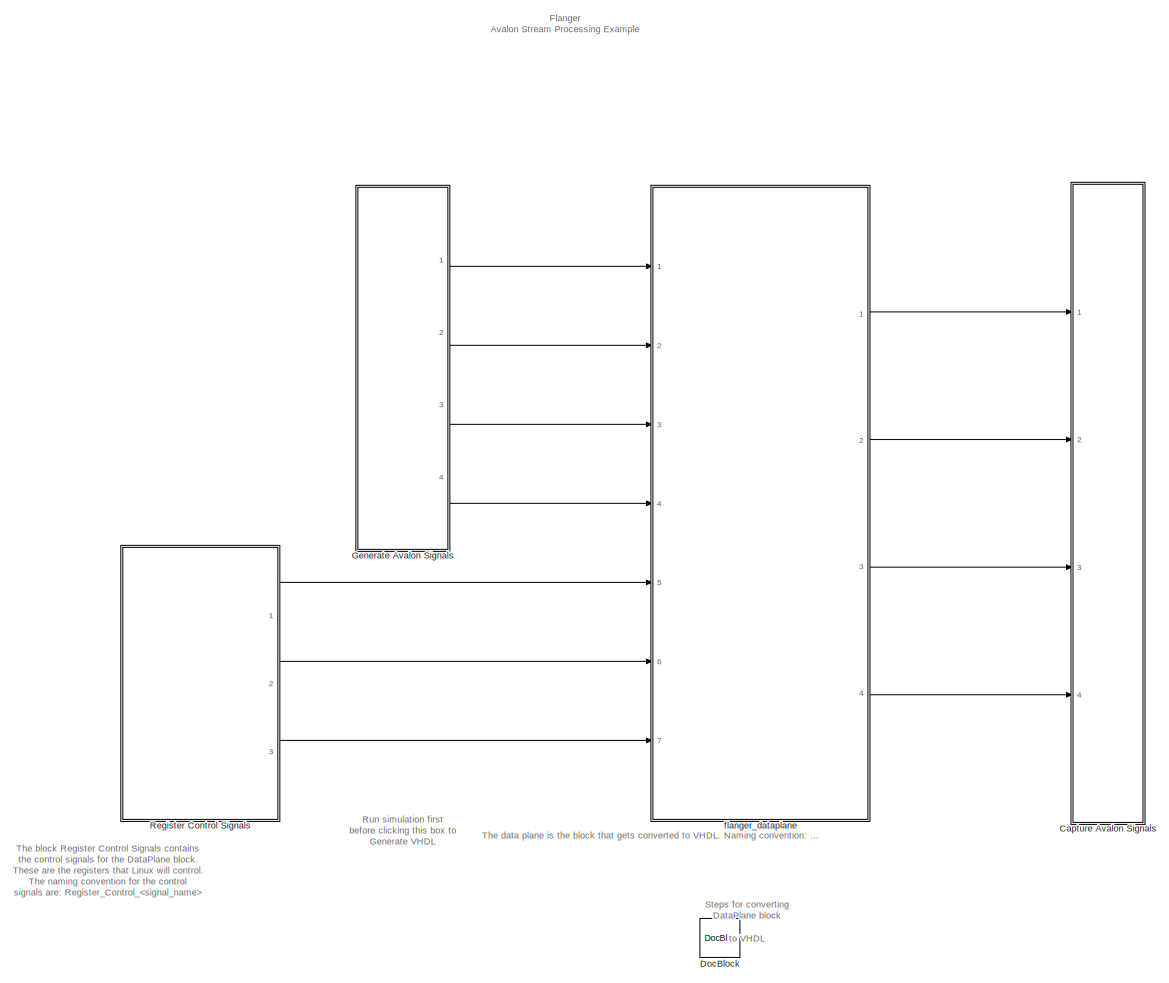
[diagram: root canvas - part 1/1, most of the canvas]
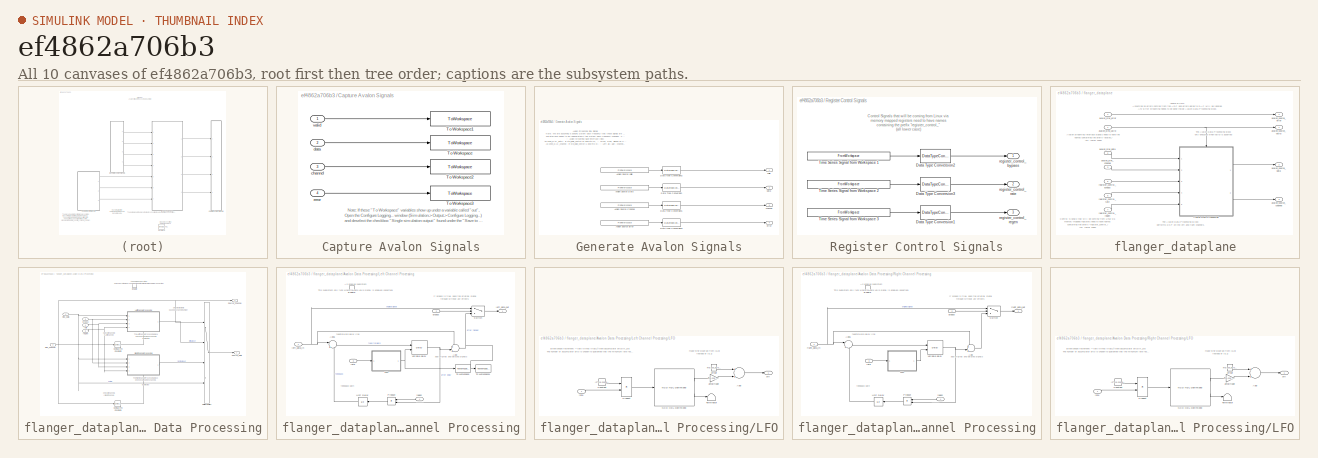
[diagram: thumbnail index - all 10 canvases of the model, root first then tree order]
MODEL slx_ef4862a706b3
KIND model
CONFIG AbsTol = auto
CONFIG EnableMultiTasking = off
CONFIG FixedStep = auto
CONFIG InitFcn = sm_callback_init
CONFIG MaxStep = auto
CONFIG MinStep = auto
CONFIG RelTol = 1e-3
CONFIG SampleTimeConstraint = Unconstrained
CONFIG Solver = FixedStepDiscrete
CONFIG SolverName = FixedStepDiscrete
CONFIG StartTime = 0.0
CONFIG StopFcn = sm_callback_stop
CONFIG StopTime = stop_time
BLOCK [SubSystem] Capture Avalon Signals
  Ports = [4]
  RequestExecContextInheritance = off
BLOCK [ToWorkspace] Capture Avalon Signals/To Workspace
  FixptAsFi = on
  MaxDataPoints = inf
  Ports = [1]
  SampleTime = -1
  SaveFormat = Timeseries
  VariableName = Avalon_Sink_Data
BLOCK [ToWorkspace] Capture Avalon Signals/To Workspace1
  FixptAsFi = on
  MaxDataPoints = inf
  Ports = [1]
  SampleTime = -1
  SaveFormat = Timeseries
  VariableName = Avalon_Sink_Valid
BLOCK [ToWorkspace] Capture Avalon Signals/To Workspace2
  FixptAsFi = on
  MaxDataPoints = inf
  Ports = [1]
  SampleTime = -1
  SaveFormat = Timeseries
  VariableName = Avalon_Sink_Channel
BLOCK [ToWorkspace] Capture Avalon Signals/To Workspace3
  FixptAsFi = on
  MaxDataPoints = inf
  Ports = [1]
  SampleTime = -1
  SaveFormat = Timeseries
  VariableName = Avalon_Sink_Error
BLOCK [Inport] Capture Avalon Signals/channel
  IconDisplay = Port number
  Port = 3
BLOCK [Inport] Capture Avalon Signals/data
  IconDisplay = Port number
  Port = 2
BLOCK [Inport] Capture Avalon Signals/error
  IconDisplay = Port number
  Port = 4
BLOCK [Inport] Capture Avalon Signals/valid
  IconDisplay = Port number
BLOCK [Reference] DocBlock  REF=simulink/Model-Wide
Utilities/DocBlock
  Ports = []
  SourceBlock = simulink/Model-Wide\nUtilities/DocBlock
  SourceProductBaseCode = SL
  SourceProductName = Simulink
  SourceType = DocBlock
  UserDataPersistent = on
BLOCK [SubSystem] Generate Avalon Signals
  Ports = [0, 4]
  RequestExecContextInheritance = off
BLOCK [FromWorkspace] Generate Avalon Signals/Avalon Source Channel
  OutDataTypeStr = double
  SampleTime = mp.Ts_system
  VariableName = mp.Avalon_Source_Channel
  ZeroCross = on
BLOCK [FromWorkspace] Generate Avalon Signals/Avalon Source Data 
  OutDataTypeStr = double
  SampleTime = mp.Ts_system
  VariableName = mp.Avalon_Source_Data
  ZeroCross = on
BLOCK [FromWorkspace] Generate Avalon Signals/Avalon Source Error
  OutDataTypeStr = double
  SampleTime = mp.Ts_system
  VariableName = mp.Avalon_Source_Error
  ZeroCross = on
BLOCK [FromWorkspace] Generate Avalon Signals/Avalon Source Valid
  OutDataTypeStr = double
  SampleTime = mp.Ts_system
  VariableName = mp.Avalon_Source_Valid
  ZeroCross = on
BLOCK [DataTypeConversion] Generate Avalon Signals/Data Type Conversion
  OutDataTypeStr = fixdt(1,mp.W_bits,mp.F_bits)
  RndMeth = Floor
  SaturateOnIntegerOverflow = off
BLOCK [DataTypeConversion] Generate Avalon Signals/Data Type Conversion1
  OutDataTypeStr = fixdt(0,2,0)
  RndMeth = Floor
  SaturateOnIntegerOverflow = off
BLOCK [DataTypeConversion] Generate Avalon Signals/Data Type Conversion2
  OutDataTypeStr = boolean
  RndMeth = Floor
  SaturateOnIntegerOverflow = off
BLOCK [DataTypeConversion] Generate Avalon Signals/Data Type Conversion3
  OutDataTypeStr = fixdt(0,2,0)
  RndMeth = Floor
  SaturateOnIntegerOverflow = off
BLOCK [Outport] Generate Avalon Signals/channel
  IconDisplay = Port number
  Port = 3
BLOCK [Outport] Generate Avalon Signals/data
  IconDisplay = Port number
  Port = 2
BLOCK [Outport] Generate Avalon Signals/error
  IconDisplay = Port number
  Port = 4
BLOCK [Outport] Generate Avalon Signals/valid
  IconDisplay = Port number
BLOCK [SubSystem] Register Control Signals
  Ports = [0, 3]
  RequestExecContextInheritance = off
BLOCK [DataTypeConversion] Register Control Signals/Data Type Conversion1
  OutDataTypeStr = fixdt(0,8,7)
  RndMeth = Floor
  SaturateOnIntegerOverflow = off
BLOCK [DataTypeConversion] Register Control Signals/Data Type Conversion2
  OutDataTypeStr = boolean
  RndMeth = Floor
  SaturateOnIntegerOverflow = off
BLOCK [DataTypeConversion] Register Control Signals/Data Type Conversion3
  OutDataTypeStr = fixdt(0,8,5)
  RndMeth = Floor
  SaturateOnIntegerOverflow = off
BLOCK [FromWorkspace] Register Control Signals/Time Series Signal from Workspace 1
  OutDataTypeStr = double
  SampleTime = mp.Ts_system
  VariableName = mp.register(1).timeseries
  ZeroCross = on
BLOCK [FromWorkspace] Register Control Signals/Time Series Signal from Workspace 2
  OutDataTypeStr = double
  SampleTime = mp.Ts_system
  VariableName = mp.register(2).timeseries
  ZeroCross = on
BLOCK [FromWorkspace] Register Control Signals/Time Series Signal from Workspace 3
  OutDataTypeStr = double
  SampleTime = mp.Ts_system
  VariableName = mp.register(3).timeseries
  ZeroCross = on
BLOCK [Outport] Register Control Signals/register_control_bypass
  IconDisplay = Port number
BLOCK [Outport] Register Control Signals/register_control_rate
  IconDisplay = Port number
  Port = 2
BLOCK [Outport] Register Control Signals/register_control_regen
  IconDisplay = Port number
  Port = 3
BLOCK [SubSystem] flanger_dataplane
  Ports = [7, 4]
  RequestExecContextInheritance = off
  TreatAsAtomicUnit = on
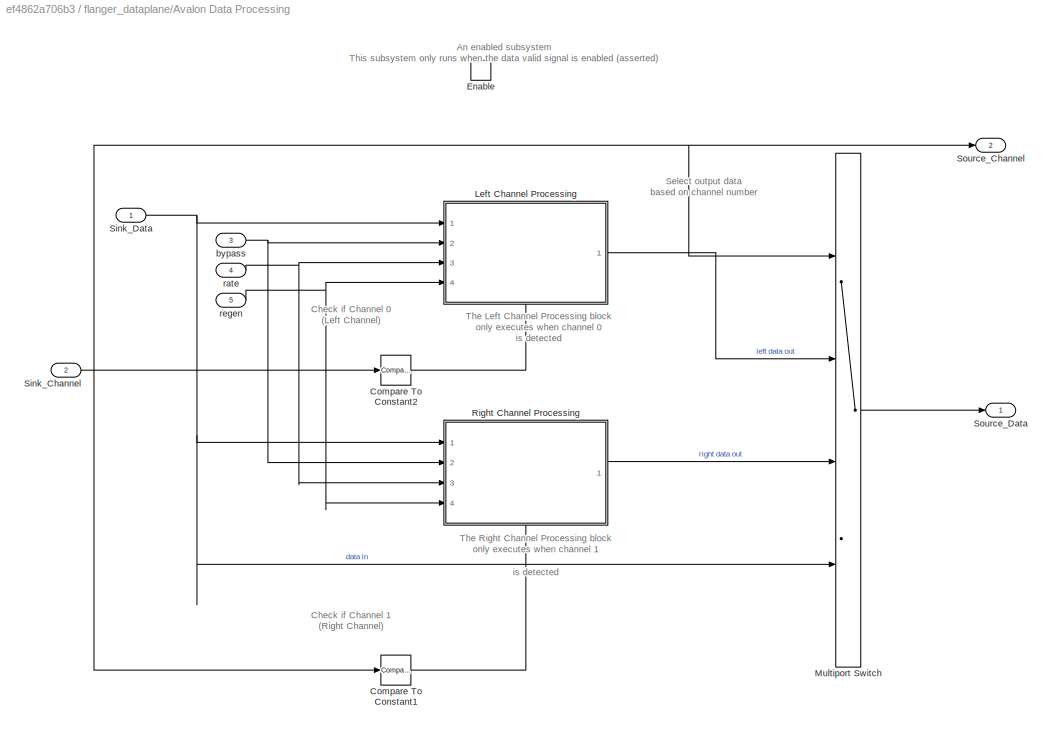
BLOCK [SubSystem] flanger_dataplane/Avalon Data Processing
  Ports = [5, 2, 1]
  RequestExecContextInheritance = off
  TreatAsAtomicUnit = on
BLOCK [Reference] flanger_dataplane/Avalon Data Processing/Compare To Constant1  REF=simulink/Logic and Bit
Operations/Compare
To Constant
  Ports = [1, 1]
  SourceBlock = simulink/Logic and Bit\nOperations/Compare\nTo Constant
  SourceProductBaseCode = SL
  SourceProductName = Simulink
  SourceType = Compare To Constant
BLOCK [Reference] flanger_dataplane/Avalon Data Processing/Compare To Constant2  REF=simulink/Logic and Bit
Operations/Compare
To Constant
  Ports = [1, 1]
  SourceBlock = simulink/Logic and Bit\nOperations/Compare\nTo Constant
  SourceProductBaseCode = SL
  SourceProductName = Simulink
  SourceType = Compare To Constant
BLOCK [EnablePort] flanger_dataplane/Avalon Data Processing/Enable
  Ports = []
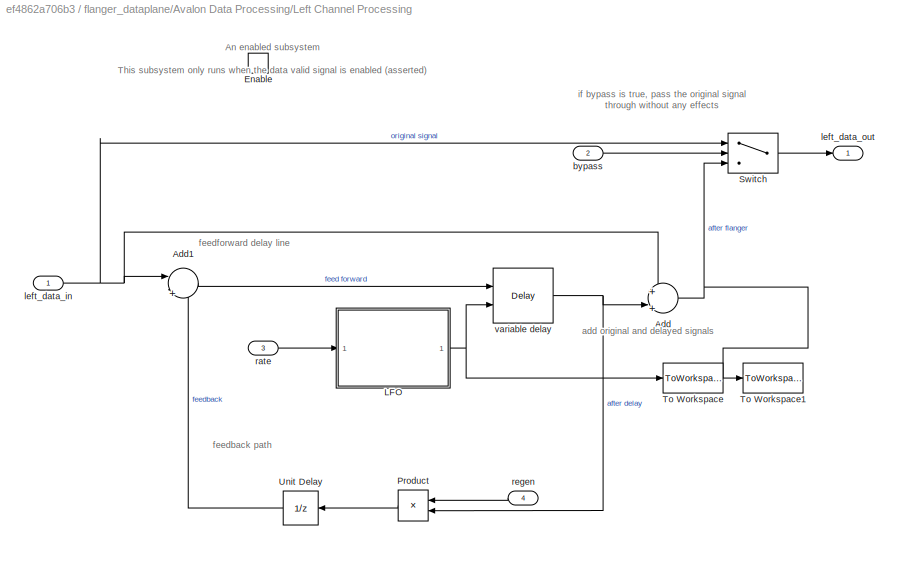
BLOCK [SubSystem] flanger_dataplane/Avalon Data Processing/Left Channel Processing
  Ports = [4, 1, 1]
  RequestExecContextInheritance = off
  TreatAsAtomicUnit = on
BLOCK [Sum] flanger_dataplane/Avalon Data Processing/Left Channel Processing/Add
  IconShape = round
  InputSameDT = off
  Inputs = +|+||
  OutDataTypeStr = fixdt(mp.signed, mp.W_bits, mp.F_bits)
  Ports = [2, 1]
  SaturateOnIntegerOverflow = off
BLOCK [Sum] flanger_dataplane/Avalon Data Processing/Left Channel Processing/Add1
  IconShape = round
  InputSameDT = off
  Inputs = ||+|+
  OutDataTypeStr = fixdt(1, 40, 32)
  Ports = [2, 1]
  SaturateOnIntegerOverflow = off
BLOCK [EnablePort] flanger_dataplane/Avalon Data Processing/Left Channel Processing/Enable
  Ports = []
BLOCK [SubSystem] flanger_dataplane/Avalon Data Processing/Left Channel Processing/LFO
  Ports = [1, 1]
  RequestExecContextInheritance = off
BLOCK [Sum] flanger_dataplane/Avalon Data Processing/Left Channel Processing/LFO/Add
  InputSameDT = off
  OutDataTypeStr = Inherit: Inherit via internal rule
  Ports = [2, 1]
  SaturateOnIntegerOverflow = off
BLOCK [Constant] flanger_dataplane/Avalon Data Processing/Left Channel Processing/LFO/Constant
  OutDataTypeStr = fixdt(0,16,12)
  SampleTime = -1
  Value = (2^mp.nco_accumulator_bits)/mp.Fs
BLOCK [Reference] flanger_dataplane/Avalon Data Processing/Left Channel Processing/LFO/NCO HDL Optimized  REF=dspsigops/NCO
HDL Optimized
  Ports = [1, 2]
  SourceBlock = dspsigops/NCO\nHDL Optimized
  SourceProductBaseCode = DS
  SourceProductName = DSP System Toolbox
  SourceType = NCO HDL Optimized
BLOCK [Product] flanger_dataplane/Avalon Data Processing/Left Channel Processing/LFO/Product
  InputSameDT = off
  OutDataTypeStr = Inherit: Inherit via internal rule
  Ports = [2, 1]
  RndMeth = Floor
  SaturateOnIntegerOverflow = off
BLOCK [Terminator] flanger_dataplane/Avalon Data Processing/Left Channel Processing/LFO/Terminator
BLOCK [Gain] flanger_dataplane/Avalon Data Processing/Left Channel Processing/LFO/amplitude
  Gain = mp.nco_amplitude
  OutDataTypeStr = int16
  ParamDataTypeStr = Inherit: Inherit via internal rule
  SaturateOnIntegerOverflow = off
BLOCK [Constant] flanger_dataplane/Avalon Data Processing/Left Channel Processing/LFO/offset
  OutDataTypeStr = uint16
  SampleTime = -1
  Value = mp.nco_offset
BLOCK [Inport] flanger_dataplane/Avalon Data Processing/Left Channel Processing/LFO/rate
  IconDisplay = Port number
BLOCK [Outport] flanger_dataplane/Avalon Data Processing/Left Channel Processing/LFO/sin
  IconDisplay = Port number
BLOCK [Product] flanger_dataplane/Avalon Data Processing/Left Channel Processing/Product
  InputSameDT = off
  OutDataTypeStr = Inherit: Inherit via back propagation
  Ports = [2, 1]
  RndMeth = Floor
  SaturateOnIntegerOverflow = off
BLOCK [Switch] flanger_dataplane/Avalon Data Processing/Left Channel Processing/Switch
  Criteria = u2 ~= 0
  InputSameDT = off
  SaturateOnIntegerOverflow = off
BLOCK [ToWorkspace] flanger_dataplane/Avalon Data Processing/Left Channel Processing/To Workspace
  FixptAsFi = on
  MaxDataPoints = inf
  Ports = [1]
  SampleTime = -1
  Save2DSignal = 2-D array (concatenate along first dimension)
  VariableName = lfo_old
BLOCK [ToWorkspace] flanger_dataplane/Avalon Data Processing/Left Channel Processing/To Workspace1
  FixptAsFi = on
  MaxDataPoints = inf
  Ports = [1]
  SampleTime = -1
  Save2DSignal = 2-D array (concatenate along first dimension)
  VariableName = out_old
BLOCK [UnitDelay] flanger_dataplane/Avalon Data Processing/Left Channel Processing/Unit Delay
  HasFrameUpgradeWarning = on
  SampleTime = -1
BLOCK [Inport] flanger_dataplane/Avalon Data Processing/Left Channel Processing/bypass
  IconDisplay = Port number
  Port = 2
BLOCK [Inport] flanger_dataplane/Avalon Data Processing/Left Channel Processing/left_data_in
  IconDisplay = Port number
BLOCK [Outport] flanger_dataplane/Avalon Data Processing/Left Channel Processing/left_data_out
  IconDisplay = Port number
  InitialOutput = 0
BLOCK [Inport] flanger_dataplane/Avalon Data Processing/Left Channel Processing/rate
  IconDisplay = Port number
  Port = 3
BLOCK [Inport] flanger_dataplane/Avalon Data Processing/Left Channel Processing/regen
  IconDisplay = Port number
  Port = 4
BLOCK [Delay] flanger_dataplane/Avalon Data Processing/Left Channel Processing/variable delay
  DelayLength = 1
  DelayLengthSource = Input port
  DelayLengthUpperLimit = mp.delay_max
  DiagnosticForDelayLength = Error
  InitialCondition = 0
  InputPortMap = u0,p1
  Ports = [2, 1]
  UseCircularBuffer = on
BLOCK [MultiPortSwitch] flanger_dataplane/Avalon Data Processing/Multiport Switch
  DataPortOrder = Zero-based contiguous
  InputSameDT = off
  Ports = [4, 1]
  SaturateOnIntegerOverflow = off
  zeroidx = on
BLOCK [SubSystem] flanger_dataplane/Avalon Data Processing/Right Channel Processing
  Ports = [4, 1, 1]
  RequestExecContextInheritance = off
  TreatAsAtomicUnit = on
BLOCK [Sum] flanger_dataplane/Avalon Data Processing/Right Channel Processing/Add
  IconShape = round
  InputSameDT = off
  Inputs = +|+||
  OutDataTypeStr = fixdt(mp.signed, mp.W_bits, mp.F_bits)
  Ports = [2, 1]
  SaturateOnIntegerOverflow = off
BLOCK [Sum] flanger_dataplane/Avalon Data Processing/Right Channel Processing/Add1
  IconShape = round
  InputSameDT = off
  Inputs = ||+|+
  OutDataTypeStr = fixdt(1, 40, 32)
  Ports = [2, 1]
  SaturateOnIntegerOverflow = off
BLOCK [EnablePort] flanger_dataplane/Avalon Data Processing/Right Channel Processing/Enable
  Ports = []
BLOCK [SubSystem] flanger_dataplane/Avalon Data Processing/Right Channel Processing/LFO
  Ports = [1, 1]
  RequestExecContextInheritance = off
BLOCK [Sum] flanger_dataplane/Avalon Data Processing/Right Channel Processing/LFO/Add
  InputSameDT = off
  OutDataTypeStr = Inherit: Inherit via internal rule
  Ports = [2, 1]
  SaturateOnIntegerOverflow = off
BLOCK [Constant] flanger_dataplane/Avalon Data Processing/Right Channel Processing/LFO/Constant
  OutDataTypeStr = fixdt(0,16,12)
  SampleTime = -1
  Value = (2^mp.nco_accumulator_bits)/mp.Fs
BLOCK [Reference] flanger_dataplane/Avalon Data Processing/Right Channel Processing/LFO/NCO HDL Optimized  REF=dspsigops/NCO
HDL Optimized
  Ports = [1, 2]
  SourceBlock = dspsigops/NCO\nHDL Optimized
  SourceProductBaseCode = DS
  SourceProductName = DSP System Toolbox
  SourceType = NCO HDL Optimized
BLOCK [Product] flanger_dataplane/Avalon Data Processing/Right Channel Processing/LFO/Product
  InputSameDT = off
  OutDataTypeStr = Inherit: Inherit via internal rule
  Ports = [2, 1]
  RndMeth = Floor
  SaturateOnIntegerOverflow = off
BLOCK [Terminator] flanger_dataplane/Avalon Data Processing/Right Channel Processing/LFO/Terminator
BLOCK [Gain] flanger_dataplane/Avalon Data Processing/Right Channel Processing/LFO/amplitude
  Gain = mp.nco_amplitude
  OutDataTypeStr = int16
  ParamDataTypeStr = Inherit: Inherit via internal rule
  SaturateOnIntegerOverflow = off
BLOCK [Constant] flanger_dataplane/Avalon Data Processing/Right Channel Processing/LFO/offset
  OutDataTypeStr = uint16
  SampleTime = -1
  Value = mp.nco_offset
BLOCK [Inport] flanger_dataplane/Avalon Data Processing/Right Channel Processing/LFO/rate
  IconDisplay = Port number
BLOCK [Outport] flanger_dataplane/Avalon Data Processing/Right Channel Processing/LFO/sin
  IconDisplay = Port number
BLOCK [Product] flanger_dataplane/Avalon Data Processing/Right Channel Processing/Product
  InputSameDT = off
  OutDataTypeStr = Inherit: Inherit via back propagation
  Ports = [2, 1]
  RndMeth = Floor
  SaturateOnIntegerOverflow = off
BLOCK [Switch] flanger_dataplane/Avalon Data Processing/Right Channel Processing/Switch
  Criteria = u2 ~= 0
  InputSameDT = off
  SaturateOnIntegerOverflow = off
BLOCK [UnitDelay] flanger_dataplane/Avalon Data Processing/Right Channel Processing/Unit Delay
  HasFrameUpgradeWarning = on
  SampleTime = -1
BLOCK [Inport] flanger_dataplane/Avalon Data Processing/Right Channel Processing/bypass
  IconDisplay = Port number
  Port = 2
BLOCK [Inport] flanger_dataplane/Avalon Data Processing/Right Channel Processing/rate
  IconDisplay = Port number
  Port = 3
BLOCK [Inport] flanger_dataplane/Avalon Data Processing/Right Channel Processing/regen
  IconDisplay = Port number
  Port = 4
BLOCK [Inport] flanger_dataplane/Avalon Data Processing/Right Channel Processing/right_data_in
  IconDisplay = Port number
BLOCK [Outport] flanger_dataplane/Avalon Data Processing/Right Channel Processing/right_data_out
  IconDisplay = Port number
  InitialOutput = 0
BLOCK [Delay] flanger_dataplane/Avalon Data Processing/Right Channel Processing/variable delay
  DelayLength = 1
  DelayLengthSource = Input port
  DelayLengthUpperLimit = mp.delay_max
  DiagnosticForDelayLength = Error
  InitialCondition = 0
  InputPortMap = u0,p1
  Ports = [2, 1]
  UseCircularBuffer = on
BLOCK [Inport] flanger_dataplane/Avalon Data Processing/Sink_Channel
  IconDisplay = Port number
  Port = 2
BLOCK [Inport] flanger_dataplane/Avalon Data Processing/Sink_Data
  IconDisplay = Port number
BLOCK [Outport] flanger_dataplane/Avalon Data Processing/Source_Channel
  IconDisplay = Port number
  InitialOutput = 0
  Port = 2
BLOCK [Outport] flanger_dataplane/Avalon Data Processing/Source_Data
  IconDisplay = Port number
  InitialOutput = 0
BLOCK [Inport] flanger_dataplane/Avalon Data Processing/bypass
  IconDisplay = Port number
  Port = 3
BLOCK [Inport] flanger_dataplane/Avalon Data Processing/rate
  IconDisplay = Port number
  Port = 4
BLOCK [Inport] flanger_dataplane/Avalon Data Processing/regen
  IconDisplay = Port number
  Port = 5
BLOCK [Inport] flanger_dataplane/avalon_sink_channel
  IconDisplay = Port number
  Port = 3
BLOCK [Inport] flanger_dataplane/avalon_sink_data
  IconDisplay = Port number
  Port = 2
BLOCK [Inport] flanger_dataplane/avalon_sink_error
  IconDisplay = Port number
  Port = 4
BLOCK [Inport] flanger_dataplane/avalon_sink_valid
  IconDisplay = Port number
BLOCK [Outport] flanger_dataplane/avalon_source_channel
  IconDisplay = Port number
  Port = 3
BLOCK [Outport] flanger_dataplane/avalon_source_data
  IconDisplay = Port number
  Port = 2
BLOCK [Outport] flanger_dataplane/avalon_source_error
  IconDisplay = Port number
  Port = 4
BLOCK [Outport] flanger_dataplane/avalon_source_valid
  IconDisplay = Port number
BLOCK [Inport] flanger_dataplane/register_control_bypass
  IconDisplay = Port number
  Port = 5
BLOCK [Inport] flanger_dataplane/register_control_rate
  IconDisplay = Port number
  Port = 6
BLOCK [Inport] flanger_dataplane/register_control_regen
  IconDisplay = Port number
  Port = 7
ANNOTATION (root): Steps for converting DataPlane block to VHDL
ANNOTATION (root): Run simulation first before clicking this box to Generate VHDL
ANNOTATION (root): Flanger Avalon Stream Processing Example
ANNOTATION (root): The block Register Control Signals contains the control signals for the DataPlane block. These are the registers that Linux will control. The naming convention for the control signals are: Register_Control_
ANNOTATION (root): The data plane is the block that gets converted to VHDL. Naming convention: _dataplane
ANNOTATION Capture Avalon Signals: Note: If these "To Workspace" variables show up under a variable called "out", Open the Configure Logging... window (Simulation->Output->Configure Logging...) and deselect the checkbox "Single simulation output:" found under the "Save to workspace or file" section.
ANNOTATION Generate Avalon Signals: Avalon Streaming Sink Signals Note: We are assuming a specific system clock frequency that these signals are being clock in at. The interface needs to be regenerated if this system clock frequency changes. Change system clock frequency in InitFcn callback in Model Explorer. -- Avalon streaming slave interface (sink) AD1939_DAC_data : in std_logic_vector(31 downto 0); -- W=32; F=28; Signed 2's Comp...<+545ch>
ANNOTATION Register Control Signals: Control Signals that will be coming from Linux via memory mapped registers need to have names containing the prefix "register_control_" (all lower case)
ANNOTATION flanger_dataplane: Avalon streaming interface signals need to have the names containing the prefix "avalon_" (all lower case)
ANNOTATION flanger_dataplane: Control Signals that will be coming from Linux via memory mapped registers need to have names containing the prefix "register_control_" (all lower case)
ANNOTATION flanger_dataplane: Ignore Errors. Assuming no errors coming from the ADC and errors going to DAC will be ignored. Any Error streaming needs to be done inside Avalon Data Processing block.
ANNOTATION flanger_dataplane: The Avalon Data Processing Block performs DSP on the left and right channels.
ANNOTATION flanger_dataplane: The Avalon Data Processing block only executes when valid is asserted
ANNOTATION flanger_dataplane/Avalon Data Processing: Check if Channel 0 (Left Channel)
ANNOTATION flanger_dataplane/Avalon Data Processing: Check if Channel 1 (Right Channel)
ANNOTATION flanger_dataplane/Avalon Data Processing: An enabled subsystem This subsystem only runs when the data valid signal is enabled (asserted)
ANNOTATION flanger_dataplane/Avalon Data Processing: Select output data based on channel number
ANNOTATION flanger_dataplane/Avalon Data Processing: The Left Channel Processing block only executes when channel 0 is detected
ANNOTATION flanger_dataplane/Avalon Data Processing: The Right Channel Processing block only executes when channel 1 is detected
ANNOTATION flanger_dataplane/Avalon Data Processing/Left Channel Processing: An enabled subsystem This subsystem only runs when the data valid signal is enabled (asserted)
ANNOTATION flanger_dataplane/Avalon Data Processing/Left Channel Processing: add original and delayed signals
ANNOTATION flanger_dataplane/Avalon Data Processing/Left Channel Processing: feedback path
ANNOTATION flanger_dataplane/Avalon Data Processing/Left Channel Processing: feedforward delay line
ANNOTATION flanger_dataplane/Avalon Data Processing/Left Channel Processing: if bypass is true, pass the original signal through without any effects
ANNOTATION flanger_dataplane/Avalon Data Processing/Left Channel Processing/LFO: $\text{phase increment} = rate \times \frac{2^\text{accumulator bits}}{f_s}$ The number of accumulator bits is chosen to guarantee that the minumum rate results in a phase increment of 1
ANNOTATION flanger_dataplane/Avalon Data Processing/Left Channel Processing/LFO: make sine wave go from [a,b] instead of [0,1]
ANNOTATION flanger_dataplane/Avalon Data Processing/Right Channel Processing: An enabled subsystem This subsystem only runs when the data valid signal is enabled (asserted)
ANNOTATION flanger_dataplane/Avalon Data Processing/Right Channel Processing: add original and delayed signals
ANNOTATION flanger_dataplane/Avalon Data Processing/Right Channel Processing: feedback path
ANNOTATION flanger_dataplane/Avalon Data Processing/Right Channel Processing: feedforward delay line
ANNOTATION flanger_dataplane/Avalon Data Processing/Right Channel Processing: if bypass is true, pass the original signal through without any effects
ANNOTATION flanger_dataplane/Avalon Data Processing/Right Channel Processing/LFO: $\text{phase increment} = rate \times \frac{2^\text{accumulator bits}}{f_s}$ The number of accumulator bits is chosen to guarantee that the minumum rate results in a phase increment of 1
ANNOTATION flanger_dataplane/Avalon Data Processing/Right Channel Processing/LFO: make sine wave go from [a,b] instead of [0,1]
LINE Capture Avalon Signals/channel:1 -> Capture Avalon Signals/To Workspace2:1
LINE Capture Avalon Signals/data:1 -> Capture Avalon Signals/To Workspace:1
LINE Capture Avalon Signals/error:1 -> Capture Avalon Signals/To Workspace3:1
LINE Capture Avalon Signals/valid:1 -> Capture Avalon Signals/To Workspace1:1
LINE Generate Avalon Signals/Avalon Source Channel:1 -> Generate Avalon Signals/Data Type Conversion1:1
LINE Generate Avalon Signals/Avalon Source Data :1 -> Generate Avalon Signals/Data Type Conversion:1
LINE Generate Avalon Signals/Avalon Source Error:1 -> Generate Avalon Signals/Data Type Conversion3:1
LINE Generate Avalon Signals/Avalon Source Valid:1 -> Generate Avalon Signals/Data Type Conversion2:1
LINE Generate Avalon Signals/Data Type Conversion1:1 -> Generate Avalon Signals/channel:1
LINE Generate Avalon Signals/Data Type Conversion2:1 -> Generate Avalon Signals/valid:1
LINE Generate Avalon Signals/Data Type Conversion3:1 -> Generate Avalon Signals/error:1
LINE Generate Avalon Signals/Data Type Conversion:1 -> Generate Avalon Signals/data:1
LINE Generate Avalon Signals:1 -> flanger_dataplane:1
LINE Generate Avalon Signals:2 -> flanger_dataplane:2
LINE Generate Avalon Signals:3 -> flanger_dataplane:3
LINE Generate Avalon Signals:4 -> flanger_dataplane:4
LINE Register Control Signals/Data Type Conversion1:1 -> Register Control Signals/register_control_regen:1
LINE Register Control Signals/Data Type Conversion2:1 -> Register Control Signals/register_control_bypass:1
LINE Register Control Signals/Data Type Conversion3:1 -> Register Control Signals/register_control_rate:1
LINE Register Control Signals/Time Series Signal from Workspace 1:1 -> Register Control Signals/Data Type Conversion2:1
LINE Register Control Signals/Time Series Signal from Workspace 2:1 -> Register Control Signals/Data Type Conversion3:1
LINE Register Control Signals/Time Series Signal from Workspace 3:1 -> Register Control Signals/Data Type Conversion1:1
LINE Register Control Signals:1 -> flanger_dataplane:5
LINE Register Control Signals:2 -> flanger_dataplane:6
LINE Register Control Signals:3 -> flanger_dataplane:7
LINE flanger_dataplane/Avalon Data Processing/Compare To Constant1:1 -> flanger_dataplane/Avalon Data Processing/Right Channel Processing:enable
LINE flanger_dataplane/Avalon Data Processing/Compare To Constant2:1 -> flanger_dataplane/Avalon Data Processing/Left Channel Processing:enable
LINE flanger_dataplane/Avalon Data Processing/Left Channel Processing/Add1:1 -> flanger_dataplane/Avalon Data Processing/Left Channel Processing/variable delay:1
NET flanger_dataplane/Avalon Data Processing/Left Channel Processing/Add:1 -> flanger_dataplane/Avalon Data Processing/Left Channel Processing/Switch:3, flanger_dataplane/Avalon Data Processing/Left Channel Processing/To Workspace1:1
LINE flanger_dataplane/Avalon Data Processing/Left Channel Processing/LFO/Add:1 -> flanger_dataplane/Avalon Data Processing/Left Channel Processing/LFO/sin:1
LINE flanger_dataplane/Avalon Data Processing/Left Channel Processing/LFO/Constant:1 -> flanger_dataplane/Avalon Data Processing/Left Channel Processing/LFO/Product:1
LINE flanger_dataplane/Avalon Data Processing/Left Channel Processing/LFO/NCO HDL Optimized:1 -> flanger_dataplane/Avalon Data Processing/Left Channel Processing/LFO/amplitude:1
LINE flanger_dataplane/Avalon Data Processing/Left Channel Processing/LFO/NCO HDL Optimized:2 -> flanger_dataplane/Avalon Data Processing/Left Channel Processing/LFO/Terminator:1
LINE flanger_dataplane/Avalon Data Processing/Left Channel Processing/LFO/Product:1 -> flanger_dataplane/Avalon Data Processing/Left Channel Processing/LFO/NCO HDL Optimized:1
LINE flanger_dataplane/Avalon Data Processing/Left Channel Processing/LFO/amplitude:1 -> flanger_dataplane/Avalon Data Processing/Left Channel Processing/LFO/Add:2
LINE flanger_dataplane/Avalon Data Processing/Left Channel Processing/LFO/offset:1 -> flanger_dataplane/Avalon Data Processing/Left Channel Processing/LFO/Add:1
LINE flanger_dataplane/Avalon Data Processing/Left Channel Processing/LFO/rate:1 -> flanger_dataplane/Avalon Data Processing/Left Channel Processing/LFO/Product:2
NET flanger_dataplane/Avalon Data Processing/Left Channel Processing/LFO:1 -> flanger_dataplane/Avalon Data Processing/Left Channel Processing/To Workspace:1, flanger_dataplane/Avalon Data Processing/Left Channel Processing/variable delay:2
LINE flanger_dataplane/Avalon Data Processing/Left Channel Processing/Product:1 -> flanger_dataplane/Avalon Data Processing/Left Channel Processing/Unit Delay:1
LINE flanger_dataplane/Avalon Data Processing/Left Channel Processing/Switch:1 -> flanger_dataplane/Avalon Data Processing/Left Channel Processing/left_data_out:1
LINE flanger_dataplane/Avalon Data Processing/Left Channel Processing/Unit Delay:1 -> flanger_dataplane/Avalon Data Processing/Left Channel Processing/Add1:2
LINE flanger_dataplane/Avalon Data Processing/Left Channel Processing/bypass:1 -> flanger_dataplane/Avalon Data Processing/Left Channel Processing/Switch:2
NET flanger_dataplane/Avalon Data Processing/Left Channel Processing/left_data_in:1 -> flanger_dataplane/Avalon Data Processing/Left Channel Processing/Add1:1, flanger_dataplane/Avalon Data Processing/Left Channel Processing/Add:1, flanger_dataplane/Avalon Data Processing/Left Channel Processing/Switch:1
LINE flanger_dataplane/Avalon Data Processing/Left Channel Processing/rate:1 -> flanger_dataplane/Avalon Data Processing/Left Channel Processing/LFO:1
LINE flanger_dataplane/Avalon Data Processing/Left Channel Processing/regen:1 -> flanger_dataplane/Avalon Data Processing/Left Channel Processing/Product:1
NET flanger_dataplane/Avalon Data Processing/Left Channel Processing/variable delay:1 -> flanger_dataplane/Avalon Data Processing/Left Channel Processing/Add:2, flanger_dataplane/Avalon Data Processing/Left Channel Processing/Product:2
LINE flanger_dataplane/Avalon Data Processing/Left Channel Processing:1 -> flanger_dataplane/Avalon Data Processing/Multiport Switch:2
LINE flanger_dataplane/Avalon Data Processing/Multiport Switch:1 -> flanger_dataplane/Avalon Data Processing/Source_Data:1
LINE flanger_dataplane/Avalon Data Processing/Right Channel Processing/Add1:1 -> flanger_dataplane/Avalon Data Processing/Right Channel Processing/variable delay:1
LINE flanger_dataplane/Avalon Data Processing/Right Channel Processing/Add:1 -> flanger_dataplane/Avalon Data Processing/Right Channel Processing/Switch:3
LINE flanger_dataplane/Avalon Data Processing/Right Channel Processing/LFO/Add:1 -> flanger_dataplane/Avalon Data Processing/Right Channel Processing/LFO/sin:1
LINE flanger_dataplane/Avalon Data Processing/Right Channel Processing/LFO/Constant:1 -> flanger_dataplane/Avalon Data Processing/Right Channel Processing/LFO/Product:1
LINE flanger_dataplane/Avalon Data Processing/Right Channel Processing/LFO/NCO HDL Optimized:1 -> flanger_dataplane/Avalon Data Processing/Right Channel Processing/LFO/amplitude:1
LINE flanger_dataplane/Avalon Data Processing/Right Channel Processing/LFO/NCO HDL Optimized:2 -> flanger_dataplane/Avalon Data Processing/Right Channel Processing/LFO/Terminator:1
LINE flanger_dataplane/Avalon Data Processing/Right Channel Processing/LFO/Product:1 -> flanger_dataplane/Avalon Data Processing/Right Channel Processing/LFO/NCO HDL Optimized:1
LINE flanger_dataplane/Avalon Data Processing/Right Channel Processing/LFO/amplitude:1 -> flanger_dataplane/Avalon Data Processing/Right Channel Processing/LFO/Add:2
LINE flanger_dataplane/Avalon Data Processing/Right Channel Processing/LFO/offset:1 -> flanger_dataplane/Avalon Data Processing/Right Channel Processing/LFO/Add:1
LINE flanger_dataplane/Avalon Data Processing/Right Channel Processing/LFO/rate:1 -> flanger_dataplane/Avalon Data Processing/Right Channel Processing/LFO/Product:2
LINE flanger_dataplane/Avalon Data Processing/Right Channel Processing/LFO:1 -> flanger_dataplane/Avalon Data Processing/Right Channel Processing/variable delay:2
LINE flanger_dataplane/Avalon Data Processing/Right Channel Processing/Product:1 -> flanger_dataplane/Avalon Data Processing/Right Channel Processing/Unit Delay:1
LINE flanger_dataplane/Avalon Data Processing/Right Channel Processing/Switch:1 -> flanger_dataplane/Avalon Data Processing/Right Channel Processing/right_data_out:1
LINE flanger_dataplane/Avalon Data Processing/Right Channel Processing/Unit Delay:1 -> flanger_dataplane/Avalon Data Processing/Right Channel Processing/Add1:2
LINE flanger_dataplane/Avalon Data Processing/Right Channel Processing/bypass:1 -> flanger_dataplane/Avalon Data Processing/Right Channel Processing/Switch:2
LINE flanger_dataplane/Avalon Data Processing/Right Channel Processing/rate:1 -> flanger_dataplane/Avalon Data Processing/Right Channel Processing/LFO:1
LINE flanger_dataplane/Avalon Data Processing/Right Channel Processing/regen:1 -> flanger_dataplane/Avalon Data Processing/Right Channel Processing/Product:1
NET flanger_dataplane/Avalon Data Processing/Right Channel Processing/right_data_in:1 -> flanger_dataplane/Avalon Data Processing/Right Channel Processing/Add1:1, flanger_dataplane/Avalon Data Processing/Right Channel Processing/Add:1, flanger_dataplane/Avalon Data Processing/Right Channel Processing/Switch:1
NET flanger_dataplane/Avalon Data Processing/Right Channel Processing/variable delay:1 -> flanger_dataplane/Avalon Data Processing/Right Channel Processing/Add:2, flanger_dataplane/Avalon Data Processing/Right Channel Processing/Product:2
LINE flanger_dataplane/Avalon Data Processing/Right Channel Processing:1 -> flanger_dataplane/Avalon Data Processing/Multiport Switch:3
NET flanger_dataplane/Avalon Data Processing/Sink_Channel:1 -> flanger_dataplane/Avalon Data Processing/Compare To Constant1:1, flanger_dataplane/Avalon Data Processing/Compare To Constant2:1, flanger_dataplane/Avalon Data Processing/Multiport Switch:1, flanger_dataplane/Avalon Data Processing/Source_Channel:1
NET flanger_dataplane/Avalon Data Processing/Sink_Data:1 -> flanger_dataplane/Avalon Data Processing/Left Channel Processing:1, flanger_dataplane/Avalon Data Processing/Multiport Switch:4, flanger_dataplane/Avalon Data Processing/Right Channel Processing:1
NET flanger_dataplane/Avalon Data Processing/bypass:1 -> flanger_dataplane/Avalon Data Processing/Left Channel Processing:2, flanger_dataplane/Avalon Data Processing/Right Channel Processing:2
NET flanger_dataplane/Avalon Data Processing/rate:1 -> flanger_dataplane/Avalon Data Processing/Left Channel Processing:3, flanger_dataplane/Avalon Data Processing/Right Channel Processing:3
NET flanger_dataplane/Avalon Data Processing/regen:1 -> flanger_dataplane/Avalon Data Processing/Left Channel Processing:4, flanger_dataplane/Avalon Data Processing/Right Channel Processing:4
LINE flanger_dataplane/Avalon Data Processing:1 -> flanger_dataplane/avalon_source_data:1
LINE flanger_dataplane/Avalon Data Processing:2 -> flanger_dataplane/avalon_source_channel:1
LINE flanger_dataplane/avalon_sink_channel:1 -> flanger_dataplane/Avalon Data Processing:2
LINE flanger_dataplane/avalon_sink_data:1 -> flanger_dataplane/Avalon Data Processing:1
LINE flanger_dataplane/avalon_sink_error:1 -> flanger_dataplane/avalon_source_error:1
NET flanger_dataplane/avalon_sink_valid:1 -> flanger_dataplane/Avalon Data Processing:enable, flanger_dataplane/avalon_source_valid:1
LINE flanger_dataplane/register_control_bypass:1 -> flanger_dataplane/Avalon Data Processing:3
LINE flanger_dataplane/register_control_rate:1 -> flanger_dataplane/Avalon Data Processing:4
LINE flanger_dataplane/register_control_regen:1 -> flanger_dataplane/Avalon Data Processing:5
LINE flanger_dataplane:1 -> Capture Avalon Signals:1
LINE flanger_dataplane:2 -> Capture Avalon Signals:2
LINE flanger_dataplane:3 -> Capture Avalon Signals:3
LINE flanger_dataplane:4 -> Capture Avalon Signals:4
note: NET lines group one-source signal fan-out (src -> all destinations, sorted); 1:1 wires keep LINE
